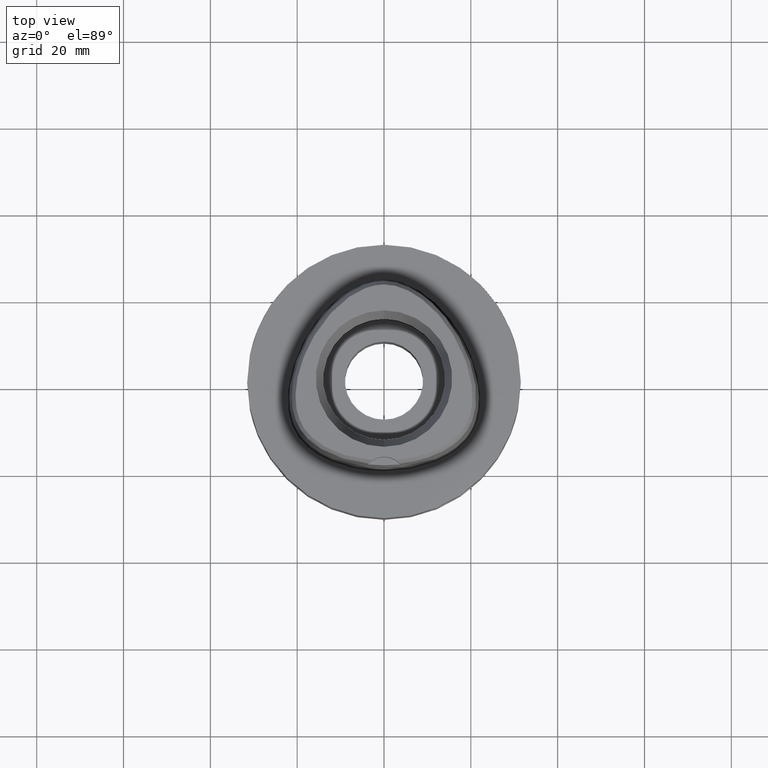
[diagram: clean part render]
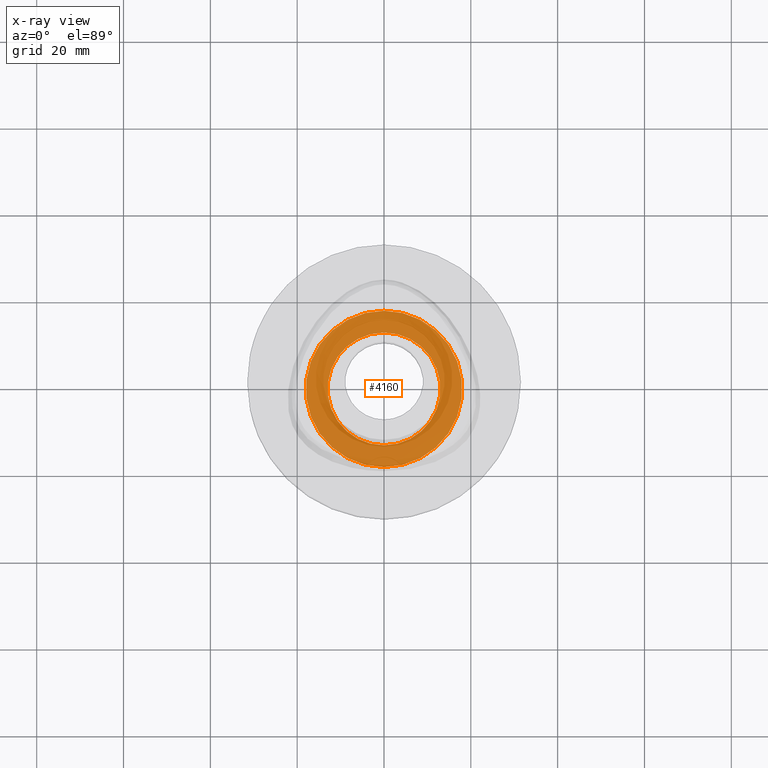
[diagram: x-ray — body ghosted, one internal face saturated and labeled with its STEP entity id]
A machine part, top view, then the same camera in x-ray: the body is ghosted and one INTERNAL B-rep face — a face not visible from any outside direction — is saturated and labeled: STEP entity #4160.
In plain terms, the highlighted planar face has unit normal (0, 0, -1).
Its self-contained STEP definition (entity closure, byte-faithful):
#211 = CIRCLE ( 'NONE', #1591, 13.00000000000000000 ) ;
#224 = DIRECTION ( 'NONE',  ( 0.0000000000000000000, -1.000000000000000000, 0.0000000000000000000 ) ) ;
#733 = EDGE_CURVE ( 'NONE', #5316, #2345, #4623, .T. ) ;
#770 = CARTESIAN_POINT ( 'NONE',  ( 0.0000000000000000000, 0.0000000000000000000, -10.80000000000000071 ) ) ;
#932 = ORIENTED_EDGE ( 'NONE', *, *, #733, .F. ) ;
#1009 = ORIENTED_EDGE ( 'NONE', *, *, #4358, .F. ) ;
#1231 = EDGE_LOOP ( 'NONE', ( #1009, #4068 ) ) ;
#1245 = ORIENTED_EDGE ( 'NONE', *, *, #3243, .F. ) ;
#1547 = DIRECTION ( 'NONE',  ( 0.0000000000000000000, 0.0000000000000000000, -1.000000000000000000 ) ) ;
#1591 = AXIS2_PLACEMENT_3D ( 'NONE', #5129, #2263, #1727 ) ;
#1604 = PLANE ( 'NONE',  #4648 ) ;
#1686 = CIRCLE ( 'NONE', #3399, 13.00000000000000000 ) ;
#1705 = DIRECTION ( 'NONE',  ( 0.0000000000000000000, 0.0000000000000000000, 1.000000000000000000 ) ) ;
#1727 = DIRECTION ( 'NONE',  ( 0.0000000000000000000, -1.000000000000000000, 0.0000000000000000000 ) ) ;
#1986 = DIRECTION ( 'NONE',  ( 0.0000000000000000000, 0.0000000000000000000, -1.000000000000000000 ) ) ;
#2263 = DIRECTION ( 'NONE',  ( 0.0000000000000000000, 0.0000000000000000000, 1.000000000000000000 ) ) ;
#2314 = EDGE_CURVE ( 'NONE', #4288, #3483, #211, .T. ) ;
#2345 = VERTEX_POINT ( 'NONE', #3024 ) ;
#2483 = DIRECTION ( 'NONE',  ( 0.0000000000000000000, 0.0000000000000000000, -1.000000000000000000 ) ) ;
#2580 = CIRCLE ( 'NONE', #4727, 18.00000000000000000 ) ;
#3024 = CARTESIAN_POINT ( 'NONE',  ( 0.0000000000000000000, -18.00000000000000000, -10.80000000000000071 ) ) ;
#3240 = FACE_BOUND ( 'NONE', #1231, .T. ) ;
#3243 = EDGE_CURVE ( 'NONE', #2345, #5316, #2580, .T. ) ;
#3369 = CARTESIAN_POINT ( 'NONE',  ( 0.0000000000000000000, -13.00000000000000000, -10.80000000000000071 ) ) ;
#3399 = AXIS2_PLACEMENT_3D ( 'NONE', #5126, #1705, #4704 ) ;
#3483 = VERTEX_POINT ( 'NONE', #4347 ) ;
#3703 = DIRECTION ( 'NONE',  ( 0.0000000000000000000, 1.000000000000000000, 0.0000000000000000000 ) ) ;
#4065 = CARTESIAN_POINT ( 'NONE',  ( 0.0000000000000000000, 18.00000000000000000, -10.80000000000000071 ) ) ;
#4068 = ORIENTED_EDGE ( 'NONE', *, *, #2314, .F. ) ;
#4160 = ADVANCED_FACE ( 'NONE', ( #5441, #3240 ), #1604, .F. ) ;
#4288 = VERTEX_POINT ( 'NONE', #3369 ) ;
#4347 = CARTESIAN_POINT ( 'NONE',  ( 0.0000000000000000000, 13.00000000000000000, -10.80000000000000071 ) ) ;
#4358 = EDGE_CURVE ( 'NONE', #3483, #4288, #1686, .T. ) ;
#4419 = EDGE_LOOP ( 'NONE', ( #932, #1245 ) ) ;
#4433 = AXIS2_PLACEMENT_3D ( 'NONE', #4533, #1986, #3703 ) ;
#4533 = CARTESIAN_POINT ( 'NONE',  ( 0.0000000000000000000, 0.0000000000000000000, -10.80000000000000071 ) ) ;
#4623 = CIRCLE ( 'NONE', #4433, 18.00000000000000000 ) ;
#4648 = AXIS2_PLACEMENT_3D ( 'NONE', #4881, #1547, #224 ) ;
#4704 = DIRECTION ( 'NONE',  ( 0.0000000000000000000, 1.000000000000000000, 0.0000000000000000000 ) ) ;
#4727 = AXIS2_PLACEMENT_3D ( 'NONE', #770, #2483, #5095 ) ;
#4881 = CARTESIAN_POINT ( 'NONE',  ( 0.0000000000000000000, 0.0000000000000000000, -10.80000000000000071 ) ) ;
#5095 = DIRECTION ( 'NONE',  ( 0.0000000000000000000, -1.000000000000000000, 0.0000000000000000000 ) ) ;
#5126 = CARTESIAN_POINT ( 'NONE',  ( 0.0000000000000000000, 0.0000000000000000000, -10.80000000000000071 ) ) ;
#5129 = CARTESIAN_POINT ( 'NONE',  ( 0.0000000000000000000, 0.0000000000000000000, -10.80000000000000071 ) ) ;
#5316 = VERTEX_POINT ( 'NONE', #4065 ) ;
#5441 = FACE_OUTER_BOUND ( 'NONE', #4419, .T. ) ;